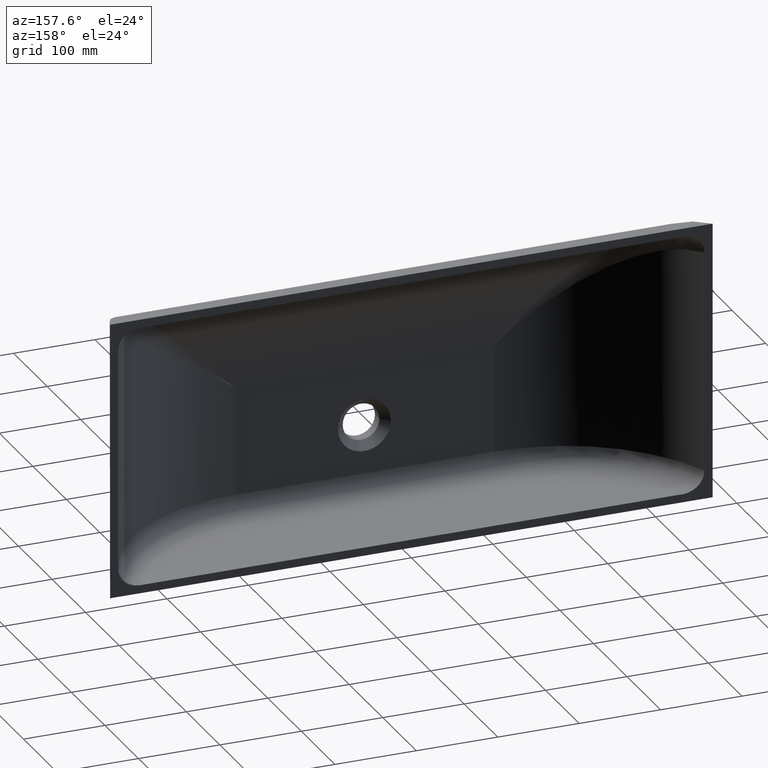
[diagram: clean part render]
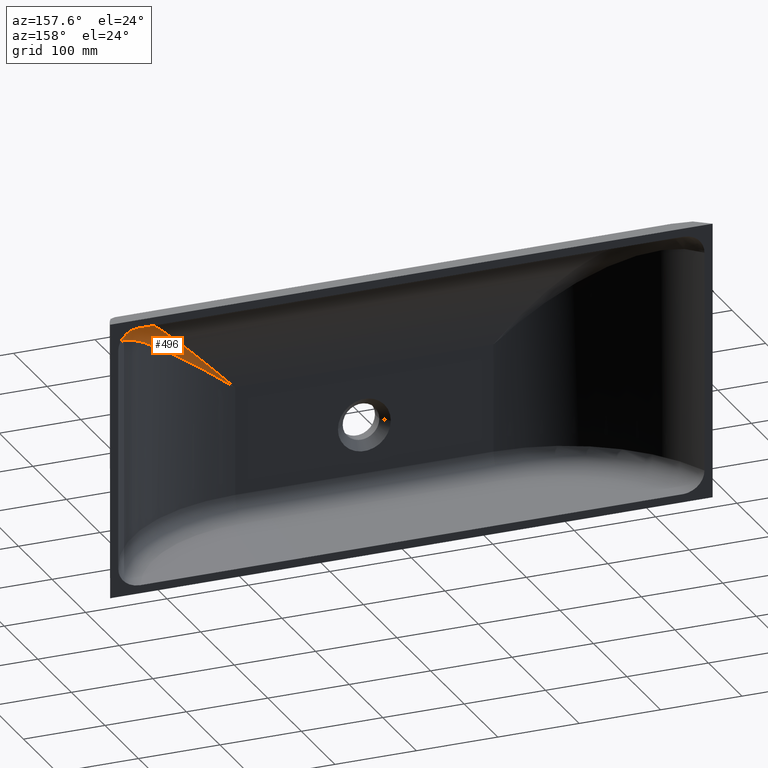
[diagram: same view with one face highlighted and labeled with its STEP entity id]
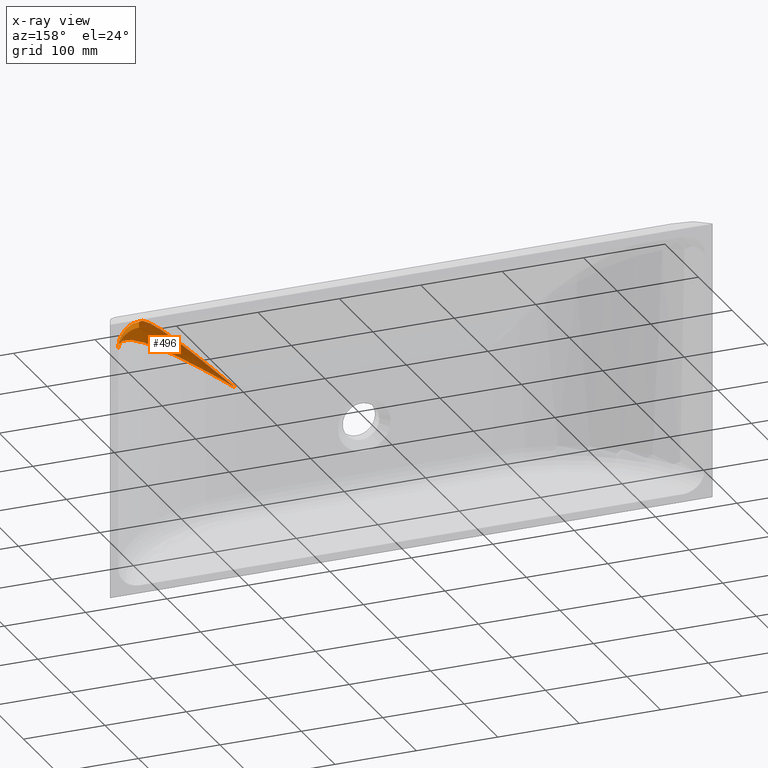
[diagram: x-ray of the same camera — body ghosted, the highlighted face saturated]
A machine part, auxiliary view. The second image highlights one B-rep face of the part: STEP entity #496.
The next image is the same camera in x-ray: the body ghosted, the highlighted face saturated — about 1% of this face is hidden behind the body in this view.
In plain terms, the highlighted face is a freeform B-spline surface patch.
Its self-contained STEP definition (entity closure, byte-faithful):
#9 = CARTESIAN_POINT ( 'NONE',  ( 308.7967371175943754, -53.07756757401281078, 217.7365059949676436 ) ) ;
#16 = CARTESIAN_POINT ( 'NONE',  ( 251.1430156677897969, -111.6499992506998922, 165.4413644839897586 ) ) ;
#23 = CARTESIAN_POINT ( 'NONE',  ( 180.2273190907416449, -138.6035608789357809, 95.17695868629715505 ) ) ;
#36 = CARTESIAN_POINT ( 'NONE',  ( 158.6406308042705575, -139.9999999999999716, 73.44411091323188145 ) ) ;
#39 = CARTESIAN_POINT ( 'NONE',  ( 240.7798648871011267, -117.9259743473460560, 155.3766093648445406 ) ) ;
#41 = CARTESIAN_POINT ( 'NONE',  ( 355.1200221693183607, -0.0000000000000000000, 225.0966133933005437 ) ) ;
#43 = CARTESIAN_POINT ( 'NONE',  ( 204.8077173396186481, -135.2073085103043582, 113.6670253525423959 ) ) ;
#47 = CARTESIAN_POINT ( 'NONE',  ( 278.0618056928828992, -103.8245056966393349, 161.8823924836077310 ) ) ;
#50 = CARTESIAN_POINT ( 'NONE',  ( 342.5883606983367713, 0.0000000000000000000, 233.6839331609355384 ) ) ;
#56 = CARTESIAN_POINT ( 'NONE',  ( 231.3781458217633826, -122.9561565982632629, 146.1728030408489190 ) ) ;
#60 = CARTESIAN_POINT ( 'NONE',  ( 289.0628230060860346, -96.02755590423856802, 185.2105442779894418 ) ) ;
#61 = CARTESIAN_POINT ( 'NONE',  ( 159.7334072754354111, -139.9976181025721473, 74.26763240980189096 ) ) ;
#68 = CARTESIAN_POINT ( 'NONE',  ( 287.2157831797215977, -80.83466452239926525, 199.2254771464129988 ) ) ;
#70 = CARTESIAN_POINT ( 'NONE',  ( 241.5257011740517612, -123.4329464672078700, 135.4394637946088835 ) ) ;
#77 = CARTESIAN_POINT ( 'NONE',  ( 331.2287005802443787, -53.22413063202709083, 197.2019757402828191 ) ) ;
#78 = CARTESIAN_POINT ( 'NONE',  ( 298.1777809516835305, -88.51238910748364219, 175.8821539123541413 ) ) ;
#85 = CARTESIAN_POINT ( 'NONE',  ( 338.1878548773991042, -43.28767718999078795, 222.7674369340379030 ) ) ;
#86 = CARTESIAN_POINT ( 'NONE',  ( 343.4211156679909323, -34.73871701973548909, 203.9536900448720189 ) ) ;
#93 = CARTESIAN_POINT ( 'NONE',  ( 328.3746591355982218, -16.37723026090737477, 231.7834286109413711 ) ) ;
#120 = CARTESIAN_POINT ( 'NONE',  ( 321.0204163143114329, -31.91134229252432775, 226.9655276459887716 ) ) ;
#127 = CARTESIAN_POINT ( 'NONE',  ( 266.8411980384452704, -100.0919106461884525, 180.4287294192358786 ) ) ;
#133 = CARTESIAN_POINT ( 'NONE',  ( 214.0617076926045854, -130.2925009944461863, 129.0405350979360719 ) ) ;
#147 = CARTESIAN_POINT ( 'NONE',  ( 334.5575919093448078, 0.0000000000000000000, 234.8659477326087028 ) ) ;
#149 = CARTESIAN_POINT ( 'NONE',  ( 239.7370909654418654, -118.5125273440687010, 154.3587864527939644 ) ) ;
#151 = CARTESIAN_POINT ( 'NONE',  ( 358.1663957947852168, 0.0000000000000000000, 219.8558883980429357 ) ) ;
#153 = CARTESIAN_POINT ( 'NONE',  ( 195.6341536966990589, -137.0065081727234997, 105.6936671125373550 ) ) ;
#156 = CARTESIAN_POINT ( 'NONE',  ( 269.0122301933216136, -109.5533992199438558, 155.4292534701171178 ) ) ;
#159 = CARTESIAN_POINT ( 'NONE',  ( 347.0904349358409036, -0.0000000000000000000, 231.8707645307098915 ) ) ;
#163 = CARTESIAN_POINT ( 'NONE',  ( 227.1825651013914467, -124.9396022781291720, 142.0389876006277348 ) ) ;
#168 = CARTESIAN_POINT ( 'NONE',  ( 285.8071651974611882, -98.47645434320767777, 182.5466159490951270 ) ) ;
#169 = CARTESIAN_POINT ( 'NONE',  ( 158.7944887963418239, -140.0000000000000568, 73.56005910804002212 ) ) ;
#180 = CARTESIAN_POINT ( 'NONE',  ( 282.5410885787941311, -85.65530821905356618, 194.9812522562049537 ) ) ;
#181 = CARTESIAN_POINT ( 'NONE',  ( 222.3885225192835549, -130.3841257974048062, 121.2806794971972550 ) ) ;
#187 = CARTESIAN_POINT ( 'NONE',  ( 327.6135709363767887, -57.94955795513530461, 195.0333597072115310 ) ) ;
#188 = CARTESIAN_POINT ( 'NONE',  ( 291.7628099427989241, -93.79924394010477329, 171.4762014280534572 ) ) ;
#196 = VERTEX_POINT ( 'NONE', #147 ) ;
#198 = CARTESIAN_POINT ( 'NONE',  ( 337.2786589004024904, -44.66291324077362646, 222.1504916474794982 ) ) ;
#199 = CARTESIAN_POINT ( 'NONE',  ( 340.2514791650472148, -39.91678974756060683, 202.2832025098383326 ) ) ;
#209 = CARTESIAN_POINT ( 'NONE',  ( 325.7978359730495868, -22.22298192613396139, 230.2047708743722580 ) ) ;
#237 = CARTESIAN_POINT ( 'NONE',  ( 323.6636555431002762, -26.58993314001563135, 228.7683147028231474 ) ) ;
#244 = CARTESIAN_POINT ( 'NONE',  ( 278.1801863681002374, -89.97729506693177370, 190.9909394834650129 ) ) ;
#250 = CARTESIAN_POINT ( 'NONE',  ( 230.6945308128251781, -123.2870506950075082, 145.5000400101610012 ) ) ;
#265 = CARTESIAN_POINT ( 'NONE',  ( 237.6497406824780114, -119.6592936455862457, 152.3184839523360665 ) ) ;
#267 = CARTESIAN_POINT ( 'NONE',  ( 358.7482234836583643, -0.0000000000000000000, 218.3295569175664923 ) ) ;
#269 = CARTESIAN_POINT ( 'NONE',  ( 177.2480677008324221, -139.3941047225355305, 89.68118623862910965 ) ) ;
#272 = CARTESIAN_POINT ( 'NONE',  ( 264.4273520248161731, -112.2193356483829945, 152.1308945341544927 ) ) ;
#274 = CARTESIAN_POINT ( 'NONE',  ( 349.8499585675151593, 0.0000000000000000000, 230.1235065629221879 ) ) ;
#277 = CARTESIAN_POINT ( 'NONE',  ( 218.7624902291460671, -128.5223030086642950, 133.7096851499319996 ) ) ;
#280 = CARTESIAN_POINT ( 'NONE',  ( 283.6242878373293479, -100.0540280937521658, 180.7516587161174186 ) ) ;
#288 = CARTESIAN_POINT ( 'NONE',  ( 281.5996672685793669, -86.60703612404390128, 194.1231042429730564 ) ) ;
#289 = CARTESIAN_POINT ( 'NONE',  ( 183.4586164444918950, -138.6190489757593980, 92.13689855839810150 ) ) ;
#297 = CARTESIAN_POINT ( 'NONE',  ( 320.1260839382223935, -66.96263731791823659, 190.3897004997023430 ) ) ;
#298 = CARTESIAN_POINT ( 'NONE',  ( 278.6027516919696723, -103.4613422832394605, 162.2655885140227667 ) ) ;
#307 = CARTESIAN_POINT ( 'NONE',  ( 334.5392868983498147, -48.70529616757599456, 220.2695645428867408 ) ) ;
#308 = CARTESIAN_POINT ( 'NONE',  ( 331.0616995359762882, -53.44163234390263995, 197.1016181715538380 ) ) ;
#315 = CARTESIAN_POINT ( 'NONE',  ( 322.3296493430677288, -29.31887005063186891, 227.8701941903838133 ) ) ;
#324 = CARTESIAN_POINT ( 'NONE',  ( 360.7591947603144718, 2.076239578135470776, 210.9360055222059316 ) ) ;
#336 = VERTEX_POINT ( 'NONE', #889 ) ;
#342 = CARTESIAN_POINT ( 'NONE',  ( 330.3662929206111585, -11.51426568801306338, 232.8993693332964483 ) ) ;
#348 = CARTESIAN_POINT ( 'NONE',  ( 289.0725132488908002, -78.78438447431722125, 200.8876448600162234 ) ) ;
#355 = CARTESIAN_POINT ( 'NONE',  ( 238.9401483054426194, -118.9545108449661086, 153.5802434963385679 ) ) ;
#356 = EDGE_CURVE ( 'NONE', #196, #336, #1022, .T. ) ;
#364 = CARTESIAN_POINT ( 'NONE',  ( 162.9879462412091584, -139.9557972168854292, 77.82316964120137470 ) ) ;
#370 = CARTESIAN_POINT ( 'NONE',  ( 236.6052011604653558, -120.2195144615957787, 151.2960434132727983 ) ) ;
#372 = CARTESIAN_POINT ( 'NONE',  ( 359.8311072258802028, -0.0000000000000000000, 214.0061384558240434 ) ) ;
#376 = CARTESIAN_POINT ( 'NONE',  ( 167.9676395272368836, -140.0000000001596163, 81.58300763936152578 ) ) ;
#380 = CARTESIAN_POINT ( 'NONE',  ( 257.4619369923250929, -115.9369657585949653, 147.0848737091878604 ) ) ;
#383 = CARTESIAN_POINT ( 'NONE',  ( 351.7726113454745018, -0.0000000000000000000, 228.6335284941201564 ) ) ;
#386 = CARTESIAN_POINT ( 'NONE',  ( 214.5379982710007880, -130.1214804214004630, 129.5141744413383265 ) ) ;
#389 = CARTESIAN_POINT ( 'NONE',  ( 277.0837201001467065, -104.5977261015443105, 175.3498950235600660 ) ) ;
#392 = CARTESIAN_POINT ( 'NONE',  ( 336.1945053448616818, 0.0000000000000000000, 234.8659477326097829 ) ) ;
#398 = CARTESIAN_POINT ( 'NONE',  ( 279.7039304088228278, -88.48596230295900966, 192.3885253548227183 ) ) ;
#399 = CARTESIAN_POINT ( 'NONE',  ( 168.6136314554118769, -139.7828142568012026, 80.95917560854276473 ) ) ;
#406 = CARTESIAN_POINT ( 'NONE',  ( 316.2536266910429958, -71.25004304964630819, 187.9144291616839268 ) ) ;
#408 = CARTESIAN_POINT ( 'NONE',  ( 258.0559243902944786, -115.6280848708810964, 147.5160465934159220 ) ) ;
#417 = CARTESIAN_POINT ( 'NONE',  ( 332.6801037676231658, -51.31711339456620635, 218.9642469658947732 ) ) ;
#418 = CARTESIAN_POINT ( 'NONE',  ( 316.3780861575738754, -71.11240681251406670, 187.9940053030376816 ) ) ;
#425 = CARTESIAN_POINT ( 'NONE',  ( 321.6236267730570262, -30.72745429858090560, 227.3851525762607082 ) ) ;
#426 = CARTESIAN_POINT ( 'NONE',  ( 357.8106410740278420, -5.893239973392915942, 210.2122176135002292 ) ) ;
#432 = CARTESIAN_POINT ( 'NONE',  ( 358.5530245173972617, -4.054810595021900888, 210.4426912995298835 ) ) ;
#458 = CARTESIAN_POINT ( 'NONE',  ( 305.6982300496030689, -57.67447729129388989, 215.2091877269241422 ) ) ;
#467 = CARTESIAN_POINT ( 'NONE',  ( 245.0801935991250673, -115.4219987507751455, 159.5646922148054614 ) ) ;
#474 = CARTESIAN_POINT ( 'NONE',  ( 175.9403282028814886, -139.1251728094351279, 90.86438219788769288 ) ) ;
#486 = CARTESIAN_POINT ( 'NONE',  ( 158.6406308042705575, -139.9999999999999716, 73.44411091323188145 ) ) ;
#489 = CARTESIAN_POINT ( 'NONE',  ( 255.1254310383063739, -117.1292206688510191, 145.3864200112721790 ) ) ;
#492 = CARTESIAN_POINT ( 'NONE',  ( 354.6065031600872430, 0.0000000000000000000, 225.7396344057791850 ) ) ;
#494 = CARTESIAN_POINT ( 'NONE',  ( 201.8192238886885548, -134.3702411549228088, 116.8451427058999599 ) ) ;
#496 = ADVANCED_FACE ( 'NONE', ( #595 ), #918, .F. ) ;
#500 = CARTESIAN_POINT ( 'NONE',  ( 272.6719907066807309, -107.4245065343966274, 171.6757820354987416 ) ) ;
#502 = CARTESIAN_POINT ( 'NONE',  ( 341.0122698701584341, -0.0000000000000000000, 234.1160088128760606 ) ) ;
#506 = CARTESIAN_POINT ( 'NONE',  ( 246.8741987455418325, -121.0462874058384983, 139.3600113639559481 ) ) ;
#509 = CARTESIAN_POINT ( 'NONE',  ( 278.7487308594913316, -89.41398344474845317, 191.5112765131568722 ) ) ;
#510 = CARTESIAN_POINT ( 'NONE',  ( 160.8266879388604309, -139.9904653368437835, 75.09153009201010320 ) ) ;
#518 = CARTESIAN_POINT ( 'NONE',  ( 308.2660539082808100, -79.42260264465424768, 182.6901637172714743 ) ) ;
#519 = CARTESIAN_POINT ( 'NONE',  ( 248.6428092387828883, -120.2528767238725749, 140.6560576509780560 ) ) ;
#527 = CARTESIAN_POINT ( 'NONE',  ( 327.0565645649966768, -58.85988126860785030, 214.9421432504551319 ) ) ;
#528 = CARTESIAN_POINT ( 'NONE',  ( 299.2309678409507114, -87.60667429259544292, 176.5997289983638154 ) ) ;
#536 = CARTESIAN_POINT ( 'NONE',  ( 320.1869241202754779, -33.52363353488158282, 226.3794658246523852 ) ) ;
#537 = CARTESIAN_POINT ( 'NONE',  ( 347.2570270395091256, -28.16244497408395375, 205.9019742135314743 ) ) ;
#543 = CARTESIAN_POINT ( 'NONE',  ( 356.1000170720286064, -9.998842827077243811, 209.6431140843255605 ) ) ;
#571 = CARTESIAN_POINT ( 'NONE',  ( 317.6109988768794210, -38.46200868850509380, 224.5564382828233079 ) ) ;
#578 = CARTESIAN_POINT ( 'NONE',  ( 262.9755640702001074, -103.1728184857293797, 176.7702082766304557 ) ) ;
#585 = CARTESIAN_POINT ( 'NONE',  ( 201.4840151142412878, -134.4564626178157312, 116.5095400917784048 ) ) ;
#595 = FACE_OUTER_BOUND ( 'NONE', #727, .T. ) ;
#599 = CARTESIAN_POINT ( 'NONE',  ( 251.5987226398437429, -118.8486113142001699, 142.8149568021602818 ) ) ;
#601 = CARTESIAN_POINT ( 'NONE',  ( 357.3459723623481068, -0.0000000000000000000, 221.7108776634499634 ) ) ;
#604 = CARTESIAN_POINT ( 'NONE',  ( 193.2798482800469628, -136.4740065646284677, 108.2896199000334150 ) ) ;
#607 = CARTESIAN_POINT ( 'NONE',  ( 263.7917346708479727, -112.6732359893556179, 164.2309753669660495 ) ) ;
#609 = CARTESIAN_POINT ( 'NONE',  ( 345.6346243771214972, -0.0000000000000000000, 232.5777224361956144 ) ) ;
#612 = CARTESIAN_POINT ( 'NONE',  ( 240.9586689062269613, -123.6685450057814109, 135.0222513170012917 ) ) ;
#619 = CARTESIAN_POINT ( 'NONE',  ( 275.8736836641722903, -92.15237176301555166, 188.8616038974635387 ) ) ;
#620 = CARTESIAN_POINT ( 'NONE',  ( 158.9520776272734395, -139.9998310673102537, 73.67881888533410972 ) ) ;
#628 = CARTESIAN_POINT ( 'NONE',  ( 304.1508848959906572, -83.30762194891512706, 179.9410436024745934 ) ) ;
#629 = CARTESIAN_POINT ( 'NONE',  ( 227.1926927072222213, -128.8312637198708330, 124.8493658064791845 ) ) ;
#637 = CARTESIAN_POINT ( 'NONE',  ( 323.1880586589393829, -63.59301362873343066, 212.0812491762326601 ) ) ;
#638 = CARTESIAN_POINT ( 'NONE',  ( 294.9862789368073095, -91.18606518210286538, 173.6967308570205262 ) ) ;
#647 = CARTESIAN_POINT ( 'NONE',  ( 319.4589394861431515, -34.90593475514090471, 225.8606957758537135 ) ) ;
#648 = CARTESIAN_POINT ( 'NONE',  ( 341.0540990897001734, -38.63645256929548566, 202.7134261610782744 ) ) ;
#657 = CARTESIAN_POINT ( 'NONE',  ( 350.7309463450939688, -21.54434110443663997, 207.5073045634308073 ) ) ;
#674 = EDGE_CURVE ( 'NONE', #336, #1211, #1233, .T. ) ;
#685 = CARTESIAN_POINT ( 'NONE',  ( 323.0142877255813119, -27.92870677334273921, 228.3339258900350615 ) ) ;
#689 = CARTESIAN_POINT ( 'NONE',  ( 359.9999999999999432, 0.0000000000000000000, 210.7565910530891813 ) ) ;
#693 = CARTESIAN_POINT ( 'NONE',  ( 274.4362927027233923, -93.47089855851726270, 187.5284281466973937 ) ) ;
#698 = CARTESIAN_POINT ( 'NONE',  ( 226.5530991622451609, -125.2241088848695654, 141.4176958332083700 ) ) ;
#712 = CARTESIAN_POINT ( 'NONE',  ( 250.4186011661741418, -119.4106479184050471, 141.9531835411365819 ) ) ;
#715 = CARTESIAN_POINT ( 'NONE',  ( 358.6120215542943015, 0.0000000000000000000, 218.7170551454429415 ) ) ;
#717 = CARTESIAN_POINT ( 'NONE',  ( 176.0662979914195887, -139.2890103841219798, 90.99698429394435095 ) ) ;
#720 = CARTESIAN_POINT ( 'NONE',  ( 259.3168553615246310, -115.1055635659904794, 160.4556742354220944 ) ) ;
#722 = CARTESIAN_POINT ( 'NONE',  ( 349.1755103230971145, -0.0000000000000000000, 230.5829724364477897 ) ) ;
#725 = CARTESIAN_POINT ( 'NONE',  ( 236.2104729647239196, -125.5690878052838855, 131.5222204470201746 ) ) ;
#727 = EDGE_LOOP ( 'NONE', ( #919, #1232, #967 ) ) ;
#728 = CARTESIAN_POINT ( 'NONE',  ( 273.9427015869537740, -93.91892377345952525, 187.0697497060064336 ) ) ;
#740 = CARTESIAN_POINT ( 'NONE',  ( 298.8604692393473101, -87.92677525364349833, 176.3475309384585046 ) ) ;
#741 = CARTESIAN_POINT ( 'NONE',  ( 198.1851144582851134, -136.5612584111331387, 103.2044845121376540 ) ) ;
#750 = CARTESIAN_POINT ( 'NONE',  ( 315.2735376436474439, -72.49452763721018300, 206.0839164933647396 ) ) ;
#751 = CARTESIAN_POINT ( 'NONE',  ( 283.0420258205810455, -100.3958403348312061, 165.3998035904188271 ) ) ;
#759 = CARTESIAN_POINT ( 'NONE',  ( 317.2519621522206421, -38.99769263353899618, 224.2623260625234707 ) ) ;
#760 = CARTESIAN_POINT ( 'NONE',  ( 336.1538772937702220, -46.18712812952163915, 200.0259993573504858 ) ) ;
#771 = CARTESIAN_POINT ( 'NONE',  ( 347.8147204163647643, -27.14575552594025609, 206.1706820433310554 ) ) ;
#779 = CARTESIAN_POINT ( 'NONE',  ( 360.0584446901875708, 0.1288223955382603592, 235.0913296075430594 ) ) ;
#797 = CARTESIAN_POINT ( 'NONE',  ( 326.8091494804826880, -19.81603169969078948, 230.7925781597981256 ) ) ;
#808 = CARTESIAN_POINT ( 'NONE',  ( 285.5248695375870511, -82.64411044685803631, 197.7019365294514728 ) ) ;
#814 = CARTESIAN_POINT ( 'NONE',  ( 236.8815013143572230, -120.0721013869327010, 151.5665847402899260 ) ) ;
#822 = CARTESIAN_POINT ( 'NONE',  ( 160.8186017767555711, -140.0000000000014495, 75.63798539723053693 ) ) ;
#828 = CARTESIAN_POINT ( 'NONE',  ( 248.0563183732563459, -120.5094823656045406, 140.2256942908215649 ) ) ;
#830 = CARTESIAN_POINT ( 'NONE',  ( 359.3315951951572629, -0.0000000000000000000, 216.3798729840156625 ) ) ;
#833 = CARTESIAN_POINT ( 'NONE',  ( 167.3913280720095997, -140.0000000000071907, 82.25870565440784787 ) ) ;
#837 = CARTESIAN_POINT ( 'NONE',  ( 252.5346946912891610, -118.4882656154348552, 154.7046012999013271 ) ) ;
#839 = CARTESIAN_POINT ( 'NONE',  ( 351.1517789581394027, 0.0000000000000000000, 229.1524080650737005 ) ) ;
#843 = CARTESIAN_POINT ( 'NONE',  ( 226.6813593567534326, -129.0020409461525617, 124.4699424427259089 ) ) ;
#846 = CARTESIAN_POINT ( 'NONE',  ( 268.1081540656197149, -99.05005501891841391, 181.6228833552123376 ) ) ;
#848 = CARTESIAN_POINT ( 'NONE',  ( 334.5575919093448078, 0.0000000000000000000, 234.8659477326087028 ) ) ;
#854 = CARTESIAN_POINT ( 'NONE',  ( 297.7950498987561900, -88.83872340292276704, 175.6209516848127521 ) ) ;
#855 = CARTESIAN_POINT ( 'NONE',  ( 171.0965481087830824, -139.6529314292683637, 82.82967491592386011 ) ) ;
#863 = CARTESIAN_POINT ( 'NONE',  ( 311.2307697497651588, -76.67511667671722364, 202.9527590848228442 ) ) ;
#864 = CARTESIAN_POINT ( 'NONE',  ( 265.0156623508367488, -111.8854746674131349, 152.5549808632362954 ) ) ;
#873 = CARTESIAN_POINT ( 'NONE',  ( 315.7478057684888313, -41.65628769202258042, 223.1392179514797647 ) ) ;
#874 = CARTESIAN_POINT ( 'NONE',  ( 320.1821060338422171, -66.89409556995792627, 190.4242269066726578 ) ) ;
#883 = CARTESIAN_POINT ( 'NONE',  ( 343.8897262908893708, -33.94505394814868282, 204.1940358722118276 ) ) ;
#884 = CARTESIAN_POINT ( 'NONE',  ( 359.9999999999999432, 0.0000000000000000000, 210.7565910530891813 ) ) ;
#889 = CARTESIAN_POINT ( 'NONE',  ( 158.6406308046548475, -139.9999999999999147, 73.44411091323188145 ) ) ;
#890 = CARTESIAN_POINT ( 'NONE',  ( 357.5276721263312538, -6.720289920134262296, 234.1465079969165402 ) ) ;
#896 = EDGE_CURVE ( 'NONE', #1211, #196, #1142, .T. ) ;
#910 = CARTESIAN_POINT ( 'NONE',  ( 334.5575919093448078, 0.0000000000000000000, 234.8659477326087028 ) ) ;
#915 = CARTESIAN_POINT ( 'NONE',  ( 299.2732239618196104, -66.48920447952660595, 209.8124342882912856 ) ) ;
#918 =( BOUNDED_SURFACE ( )  B_SPLINE_SURFACE ( 3, 2, ( 
 ( #36, #486, #942 ),
 ( #1379, #376, #833 ),
 ( #1275, #269, #717 ),
 ( #1170, #153, #604 ),
 ( #1063, #43, #494 ),
 ( #951, #1387, #386 ),
 ( #843, #1284, #277 ),
 ( #725, #1178, #163 ),
 ( #612, #1075, #56 ),
 ( #506, #1373, #370 ),
 ( #828, #1270, #265 ),
 ( #712, #1166, #149 ),
 ( #599, #1059, #39 ),
 ( #489, #945, #1384 ),
 ( #380, #837, #1279 ),
 ( #272, #720, #1173 ),
 ( #156, #607, #1066 ),
 ( #47, #500, #954 ),
 ( #1391, #389, #846 ),
 ( #1287, #280, #728 ),
 ( #1182, #168, #619 ),
 ( #1080, #60, #509 ),
 ( #964, #1399, #398 ),
 ( #854, #1294, #288 ),
 ( #740, #1190, #180 ),
 ( #628, #1089, #68 ),
 ( #518, #973, #1407 ),
 ( #406, #863, #1304 ),
 ( #297, #750, #1199 ),
 ( #187, #637, #1098 ),
 ( #77, #527, #982 ),
 ( #1415, #417, #873 ),
 ( #1314, #307, #759 ),
 ( #1208, #198, #647 ),
 ( #1108, #85, #536 ),
 ( #993, #1423, #425 ),
 ( #883, #1322, #315 ),
 ( #771, #1217, #209 ),
 ( #657, #1116, #93 ),
 ( #543, #1000, #1431 ),
 ( #432, #890, #1329 ),
 ( #324, #779, #1224 ) ),
 .UNSPECIFIED., .F., .F., .F. ) 
 B_SPLINE_SURFACE_WITH_KNOTS ( ( 4, 2, 2, 2, 2, 2, 2, 2, 2, 2, 2, 2, 2, 2, 2, 2, 2, 2, 2, 2, 4 ),
 ( 3, 3 ),
 ( -8.713339240256410374E-05, 0.03392646650334189828, 0.06794006639908635459, 0.08494686634695858274, 0.1019536662948308248, 0.1062053662817988853, 0.1104570662687669458, 0.1189604662427030529, 0.1359672661905752811, 0.1529740661384474953, 0.1614774661123836164, 0.1657291660993516769, 0.1699808660863197374, 0.1869876660341919794, 0.2039944659820642214, 0.2210012659299364635, 0.2295046659038725845, 0.2337563658908406450, 0.2380080658778086777, 0.2550148658256808920, 0.2720216657735531340 ),
 ( 0.0000000000000000000, 1.000000000000000000 ),
 .UNSPECIFIED. ) 
 GEOMETRIC_REPRESENTATION_ITEM ( )  RATIONAL_B_SPLINE_SURFACE ( (
 ( 1.000000000000000000, 1.000000000000000000, 1.000000000000000000),
 ( 1.000000000000000000, 0.9999981369205060977, 1.000000000000000000),
 ( 1.000000000000000000, 0.9981120371569368599, 1.000000000000000000),
 ( 1.000000000000000000, 0.9906969518077292092, 1.000000000000000000),
 ( 1.000000000000000000, 0.9851691513459762684, 1.000000000000000000),
 ( 1.000000000000000000, 0.9741647250360242483, 1.000000000000000000),
 ( 1.000000000000000000, 0.9700436460348432766, 1.000000000000000000),
 ( 1.000000000000000000, 0.9608894642560760202, 1.000000000000000000),
 ( 1.000000000000000000, 0.9558563406939785123, 1.000000000000000000),
 ( 1.000000000000000000, 0.9489877036597271776, 1.000000000000000000),
 ( 1.000000000000000000, 0.9475851024767252273, 1.000000000000000000),
 ( 1.000000000000000000, 0.9447219259963979265, 1.000000000000000000),
 ( 1.000000000000000000, 0.9432613405657145345, 1.000000000000000000),
 ( 1.000000000000000000, 0.9388062078748130590, 1.000000000000000000),
 ( 1.000000000000000000, 0.9357340081441455348, 1.000000000000000000),
 ( 1.000000000000000000, 0.9262185156613897963, 1.000000000000000000),
 ( 1.000000000000000000, 0.9194761029222041637, 1.000000000000000000),
 ( 1.000000000000000000, 0.9052371073986130723, 1.000000000000000000),
 ( 1.000000000000000000, 0.8977402756132679684, 1.000000000000000000),
 ( 1.000000000000000000, 0.8859692428504611916, 1.000000000000000000),
 ( 1.000000000000000000, 0.8819580359880897502, 1.000000000000000000),
 ( 1.000000000000000000, 0.8758162214678011370, 1.000000000000000000),
 ( 1.000000000000000000, 0.8737471417572513221, 1.000000000000000000),
 ( 1.000000000000000000, 0.8695849909199993011, 1.000000000000000000),
 ( 1.000000000000000000, 0.8674900607628598381, 1.000000000000000000),
 ( 1.000000000000000000, 0.8569515131439879863, 1.000000000000000000),
 ( 1.000000000000000000, 0.8483148289418076526, 1.000000000000000000),
 ( 1.000000000000000000, 0.8307874331769471432, 1.000000000000000000),
 ( 1.000000000000000000, 0.8218960393518263130, 1.000000000000000000),
 ( 1.000000000000000000, 0.8040615358750745623, 1.000000000000000000),
 ( 1.000000000000000000, 0.7951173850308079771, 1.000000000000000000),
 ( 1.000000000000000000, 0.7818671791656758296, 1.000000000000000000),
 ( 1.000000000000000000, 0.7774787610319172648, 1.000000000000000000),
 ( 1.000000000000000000, 0.7709716907464523317, 1.000000000000000000),
 ( 1.000000000000000000, 0.7688137074430464457, 1.000000000000000000),
 ( 1.000000000000000000, 0.7645362243340414476, 1.000000000000000000),
 ( 1.000000000000000000, 0.7624247767078305982, 1.000000000000000000),
 ( 1.000000000000000000, 0.7520188214643702684, 1.000000000000000000),
 ( 1.000000000000000000, 0.7441756527391116816, 1.000000000000000000),
 ( 1.000000000000000000, 0.7298706279466933289, 1.000000000000000000),
 ( 1.000000000000000000, 0.7234096579448064945, 1.000000000000000000),
 ( 1.000000000000000000, 0.7178802569954649826, 1.000000000000000000) ) ) 
 REPRESENTATION_ITEM ( '' )  SURFACE ( )  );
#919 = ORIENTED_EDGE ( 'NONE', *, *, #896, .F. ) ;
#924 = CARTESIAN_POINT ( 'NONE',  ( 243.0446319057856215, -116.6334079950364355, 157.5851178738527949 ) ) ;
#931 = CARTESIAN_POINT ( 'NONE',  ( 169.4777523444251415, -139.6488315439184191, 84.35892050631132122 ) ) ;
#938 = CARTESIAN_POINT ( 'NONE',  ( 359.9999999999999432, 0.0000000000000000000, 210.7565910530891813 ) ) ;
#942 = CARTESIAN_POINT ( 'NONE',  ( 158.6406308042705575, -139.9999999999999716, 73.44411091323188145 ) ) ;
#945 = CARTESIAN_POINT ( 'NONE',  ( 250.2726072953599896, -119.5674001250854417, 152.7816898167959607 ) ) ;
#947 = CARTESIAN_POINT ( 'NONE',  ( 353.5277075101101900, -0.0000000000000000000, 226.9578747974769328 ) ) ;
#951 = CARTESIAN_POINT ( 'NONE',  ( 221.9004441730688768, -130.5343768945903378, 120.9176752435367774 ) ) ;
#954 = CARTESIAN_POINT ( 'NONE',  ( 264.1630618796378940, -102.2465077297693625, 177.8967707442951109 ) ) ;
#956 = CARTESIAN_POINT ( 'NONE',  ( 340.2143009028646361, 0.0000000000000000000, 234.2956580976439795 ) ) ;
#964 = CARTESIAN_POINT ( 'NONE',  ( 295.6496186311229621, -90.63911534542394577, 174.1523133910034176 ) ) ;
#966 = CARTESIAN_POINT ( 'NONE',  ( 163.0112097738811769, -139.9618763560601451, 76.73776207548647221 ) ) ;
#967 = ORIENTED_EDGE ( 'NONE', *, *, #356, .F. ) ;
#973 = CARTESIAN_POINT ( 'NONE',  ( 302.9829109474823667, -84.54811585441014188, 196.4567634889746444 ) ) ;
#974 = CARTESIAN_POINT ( 'NONE',  ( 251.0138301351722134, -119.1415944911333611, 142.3892556520597452 ) ) ;
#982 = CARTESIAN_POINT ( 'NONE',  ( 311.1421676076332119, -49.43891226635517455, 219.6120138468388348 ) ) ;
#984 = CARTESIAN_POINT ( 'NONE',  ( 304.4581570725684401, -83.02229259888048318, 180.1470565071396379 ) ) ;
#993 = CARTESIAN_POINT ( 'NONE',  ( 343.0907109161653352, -35.29476303131735904, 203.7833594287925507 ) ) ;
#994 = CARTESIAN_POINT ( 'NONE',  ( 350.1137609841835001, -22.75189831581827349, 207.2303008674101079 ) ) ;
#1000 = CARTESIAN_POINT ( 'NONE',  ( 354.7072546344767261, -13.29727134308465430, 232.7981064487428569 ) ) ;
#1022 = B_SPLINE_CURVE_WITH_KNOTS ( 'NONE', 3,
 ( #910, #1346, #342, #797, #1245, #237, #685, #1140, #120, #571, #1031, #9, #458, #915, #1351, #348, #808, #1251, #244, #693, #1146, #127, #578, #1037, #16, #467, #924, #1360, #355, #814, #1256, #250, #698, #1152, #133, #585, #1046, #23, #474, #931, #1367, #364, #822, #1264 ),
 .UNSPECIFIED., .F., .F.,
 ( 4, 2, 2, 2, 2, 2, 2, 2, 2, 2, 2, 2, 2, 2, 2, 2, 2, 2, 2, 2, 2, 4 ),
 ( 0.0000000000000000000, 0.01854829196630610258, 0.02782243794945915907, 0.03245951094103571855, 0.03709658393261228149, 0.05564487589891869979, 0.07419316786522511808, 0.09274145983153152251, 0.1112897517978379408, 0.1205638977809911500, 0.1298380437641443730, 0.1483863357304507080, 0.1669346276967570430, 0.1762087736799102244, 0.1808458466714867596, 0.1854829196630632948, 0.2040312116293694356, 0.2225795035956756041, 0.2596760875282879133, 0.2782243794945940540, 0.2874985254777471244, 0.2967726714609002503 ),
 .UNSPECIFIED. ) ;
#1031 = CARTESIAN_POINT ( 'NONE',  ( 314.7530788975631708, -43.47121982518363126, 222.4099983894727472 ) ) ;
#1037 = CARTESIAN_POINT ( 'NONE',  ( 255.1264779964571687, -108.9519003877734065, 169.2765499475414117 ) ) ;
#1046 = CARTESIAN_POINT ( 'NONE',  ( 193.0287964990245371, -136.5247165045614111, 108.0377325074818629 ) ) ;
#1059 = CARTESIAN_POINT ( 'NONE',  ( 246.8611364428169566, -121.1223856704771293, 149.8753058608234880 ) ) ;
#1061 = CARTESIAN_POINT ( 'NONE',  ( 356.5429540486287010, -0.0000000000000000000, 223.1135846400030402 ) ) ;
#1063 = CARTESIAN_POINT ( 'NONE',  ( 207.5064336827487068, -134.6055504594995114, 110.1910226371233676 ) ) ;
#1066 = CARTESIAN_POINT ( 'NONE',  ( 256.1667144329244934, -108.2252992162097485, 170.2750991983226641 ) ) ;
#1069 = CARTESIAN_POINT ( 'NONE',  ( 343.3612177800625318, -0.0000000000000000000, 233.4331847124630031 ) ) ;
#1075 = CARTESIAN_POINT ( 'NONE',  ( 236.6431856317185236, -125.4518707357443219, 141.1421217754824227 ) ) ;
#1080 = CARTESIAN_POINT ( 'NONE',  ( 294.5686062693679332, -91.52834761264811902, 173.4095617924257056 ) ) ;
#1081 = CARTESIAN_POINT ( 'NONE',  ( 159.2646388363566530, -139.9991504810973595, 73.91436650768115157 ) ) ;
#1089 = CARTESIAN_POINT ( 'NONE',  ( 298.7786706160104018, -88.25256861986586898, 193.0946507662062572 ) ) ;
#1090 = CARTESIAN_POINT ( 'NONE',  ( 236.7612822250981424, -125.3556399109076409, 131.9287474315778752 ) ) ;
#1098 = CARTESIAN_POINT ( 'NONE',  ( 307.9477821141423988, -54.37046572123598054, 217.0507054544131336 ) ) ;
#1099 = CARTESIAN_POINT ( 'NONE',  ( 296.0559591228519594, -90.30166521931616330, 174.4310155224555388 ) ) ;
#1108 = CARTESIAN_POINT ( 'NONE',  ( 341.4647749230526870, -37.97406923453775107, 202.9318616473718180 ) ) ;
#1109 = CARTESIAN_POINT ( 'NONE',  ( 342.6400523118312549, -36.04558897882957069, 203.5492746982118604 ) ) ;
#1116 = CARTESIAN_POINT ( 'NONE',  ( 348.5773290745399322, -25.87778102491087040, 229.4316681747172595 ) ) ;
#1140 = CARTESIAN_POINT ( 'NONE',  ( 321.6930846871173912, -30.58861602884664421, 227.4328281026753018 ) ) ;
#1142 = B_SPLINE_CURVE_WITH_KNOTS ( 'NONE', 3,
 ( #938, #1375, #372, #830, #1272, #267, #715, #1168, #151, #601, #1061, #41, #492, #947, #1385, #383, #839, #1281, #274, #722, #1175, #159, #609, #1069, #50, #502, #956, #1393, #392, #848 ),
 .UNSPECIFIED., .F., .F.,
 ( 4, 2, 2, 2, 2, 2, 2, 2, 2, 2, 2, 2, 2, 2, 4 ),
 ( 0.0000000000000000000, 0.004847773143508090493, 0.007271659715262153954, 0.008483603001139185251, 0.009695546287016215681, 0.01454331943052447444, 0.01696720600227865153, 0.01939109257403282688, 0.02181497914578700223, 0.02302692243166416103, 0.02423886571754131636, 0.02908663886104992380, 0.03151052543280420670, 0.03393441200455849655, 0.03878218514806706929 ),
 .UNSPECIFIED. ) ;
#1146 = CARTESIAN_POINT ( 'NONE',  ( 272.5488788635722699, -95.16447085295834540, 185.7716442859938297 ) ) ;
#1152 = CARTESIAN_POINT ( 'NONE',  ( 218.2366862725550902, -128.7268677110080262, 133.1879536583396941 ) ) ;
#1166 = CARTESIAN_POINT ( 'NONE',  ( 245.7225850192548364, -121.6294259542869582, 148.9042654863218900 ) ) ;
#1168 = CARTESIAN_POINT ( 'NONE',  ( 358.3212302895880157, -0.0000000000000000000, 219.4797644280571944 ) ) ;
#1170 = CARTESIAN_POINT ( 'NONE',  ( 197.8423058038261786, -136.6213839367583205, 102.9472077249767779 ) ) ;
#1173 = CARTESIAN_POINT ( 'NONE',  ( 252.1154438690510347, -111.0075254795633555, 166.3794743872268498 ) ) ;
#1175 = CARTESIAN_POINT ( 'NONE',  ( 348.8308066239244454, 0.0000000000000000000, 230.8056299325390057 ) ) ;
#1178 = CARTESIAN_POINT ( 'NONE',  ( 232.0899823340518253, -127.1586637820765304, 137.2324103953064025 ) ) ;
#1182 = CARTESIAN_POINT ( 'NONE',  ( 291.3148761341461181, -94.15227840821688687, 171.1661292820792539 ) ) ;
#1183 = CARTESIAN_POINT ( 'NONE',  ( 158.6406308046548475, -139.9999999999999147, 73.44411091323188145 ) ) ;
#1190 = CARTESIAN_POINT ( 'NONE',  ( 293.3859763464080288, -92.64382873260584006, 188.7295610232836509 ) ) ;
#1191 = CARTESIAN_POINT ( 'NONE',  ( 207.9150621329929152, -134.5127117515090731, 110.4968803020896644 ) ) ;
#1199 = CARTESIAN_POINT ( 'NONE',  ( 301.3317206709172069, -63.77670131279106158, 211.5661737904175368 ) ) ;
#1200 = CARTESIAN_POINT ( 'NONE',  ( 289.5957761871267166, -95.48724776503057399, 169.9731323932710154 ) ) ;
#1208 = CARTESIAN_POINT ( 'NONE',  ( 340.6409047807625825, -39.29859385235679525, 202.4926279148756691 ) ) ;
#1209 = CARTESIAN_POINT ( 'NONE',  ( 337.8154445689507384, -43.71400464423653176, 200.9571558195915770 ) ) ;
#1211 = VERTEX_POINT ( 'NONE', #689 ) ;
#1217 = CARTESIAN_POINT ( 'NONE',  ( 345.2883469543596675, -31.86826463491255268, 227.4319839697590453 ) ) ;
#1224 = CARTESIAN_POINT ( 'NONE',  ( 337.2357773853162826, 8.273695106847226199, 235.8329977403753048 ) ) ;
#1232 = ORIENTED_EDGE ( 'NONE', *, *, #674, .F. ) ;
#1233 = B_SPLINE_CURVE_WITH_KNOTS ( 'NONE', 3,
 ( #1183, #169, #620, #1081, #61, #510, #966, #1400, #399, #855, #1295, #289, #741, #1191, #181, #629, #1090, #70, #519, #974, #1408, #408, #864, #1305, #298, #751, #1200, #188, #638, #1099, #78, #528, #984, #1416, #418, #874, #1315, #308, #760, #1209, #199, #648, #1109, #86, #537, #994, #1424, #426, #884 ),
 .UNSPECIFIED., .F., .F.,
 ( 4, 2, 1, 1, 1, 2, 2, 2, 2, 2, 2, 2, 2, 2, 2, 2, 2, 2, 2, 2, 2, 2, 2, 2, 2, 4 ),
 ( -9.273592403470564348E-05, 0.0004852315353433312188, 0.001063198994721368217, 0.002219133913477441995, 0.004531003750989589553, 0.009154743426013840432, 0.01840222277606232484, 0.03689718147615932142, 0.07388709887635332152, 0.09238205757645033545, 0.1108770162765473216, 0.1201244956265958147, 0.1293719749766443217, 0.1478669336767412246, 0.1663618923768381552, 0.1756093717268866761, 0.1802331114019110059, 0.1848568510769353357, 0.2033518097770327104, 0.2218467684771300574, 0.2403417271772274599, 0.2495892065272760640, 0.2542129462023003938, 0.2588366858773246681, 0.2773316445774219319, 0.2958266032775191956 ),
 .UNSPECIFIED. ) ;
#1245 = CARTESIAN_POINT ( 'NONE',  ( 325.5779715734840920, -22.54692885686621651, 230.0222414737444581 ) ) ;
#1251 = CARTESIAN_POINT ( 'NONE',  ( 280.0393024307044243, -88.17436720427248531, 192.6990306047458148 ) ) ;
#1256 = CARTESIAN_POINT ( 'NONE',  ( 235.8511793006385062, -120.6182572031821252, 150.5573975105885722 ) ) ;
#1264 = CARTESIAN_POINT ( 'NONE',  ( 158.6406308046548475, -139.9999999999999147, 73.44411091323188145 ) ) ;
#1270 = CARTESIAN_POINT ( 'NONE',  ( 243.4460286760479448, -122.6197097010024351, 146.9606493609237248 ) ) ;
#1272 = CARTESIAN_POINT ( 'NONE',  ( 359.1237691599417872, 0.0000000000000000000, 217.1640883381752758 ) ) ;
#1275 = CARTESIAN_POINT ( 'NONE',  ( 178.3614960980041246, -139.3187279040908209, 88.30582875671464649 ) ) ;
#1279 = CARTESIAN_POINT ( 'NONE',  ( 245.9606934375252081, -114.8873209689793953, 160.4197215813740343 ) ) ;
#1281 = CARTESIAN_POINT ( 'NONE',  ( 350.1804342888220845, -0.0000000000000000000, 229.8862954756433794 ) ) ;
#1284 = CARTESIAN_POINT ( 'NONE',  ( 222.9886136576348008, -130.2282492231728384, 129.3944676928269359 ) ) ;
#1287 = CARTESIAN_POINT ( 'NONE',  ( 289.1295573730486126, -95.84499313076391047, 169.6489969680700085 ) ) ;
#1294 = CARTESIAN_POINT ( 'NONE',  ( 292.3103877683706742, -93.50251161195252791, 187.8564218808935209 ) ) ;
#1295 = CARTESIAN_POINT ( 'NONE',  ( 178.5277855335870640, -139.1350691455097603, 88.42607464729182709 ) ) ;
#1304 = CARTESIAN_POINT ( 'NONE',  ( 297.9099564541668883, -68.25112639722134134, 208.6426810397125564 ) ) ;
#1305 = CARTESIAN_POINT ( 'NONE',  ( 269.5895785471466297, -109.2062013134034544, 155.8432022720342616 ) ) ;
#1314 = CARTESIAN_POINT ( 'NONE',  ( 338.1432384221747611, -43.21932687382096105, 201.1393156010648227 ) ) ;
#1315 = CARTESIAN_POINT ( 'NONE',  ( 327.5238752302911962, -58.05862933059101749, 194.9779482906326109 ) ) ;
#1322 = CARTESIAN_POINT ( 'NONE',  ( 340.8761655335098339, -39.08013681331185296, 224.5599257895112828 ) ) ;
#1329 = CARTESIAN_POINT ( 'NONE',  ( 335.2863758084948813, 1.875221705696292096, 235.2503558761318914 ) ) ;
#1346 = CARTESIAN_POINT ( 'NONE',  ( 332.5561834727519113, -5.834657015661600887, 234.0324077545790544 ) ) ;
#1351 = CARTESIAN_POINT ( 'NONE',  ( 295.9466795341761554, -70.70689783968219899, 206.9428522745554915 ) ) ;
#1360 = CARTESIAN_POINT ( 'NONE',  ( 239.9693094593171736, -118.3825884873383814, 154.5855293176510088 ) ) ;
#1367 = CARTESIAN_POINT ( 'NONE',  ( 167.3182068370115587, -139.7802136368541710, 82.18432732530946794 ) ) ;
#1373 = CARTESIAN_POINT ( 'NONE',  ( 242.3079314854352901, -123.1030879398524718, 145.9880029498378917 ) ) ;
#1375 = CARTESIAN_POINT ( 'NONE',  ( 359.9999999999999432, -0.0000000000000000000, 212.3957303358398008 ) ) ;
#1379 = CARTESIAN_POINT ( 'NONE',  ( 168.5439143573316017, -140.0000000000081570, 80.90727765644328429 ) ) ;
#1384 = CARTESIAN_POINT ( 'NONE',  ( 243.8961199753836127, -116.1315827932899083, 158.4137123827078995 ) ) ;
#1385 = CARTESIAN_POINT ( 'NONE',  ( 352.9605730739934870, 0.0000000000000000000, 227.5362590373806597 ) ) ;
#1387 = CARTESIAN_POINT ( 'NONE',  ( 218.4318753701116691, -131.5971032497773479, 125.4590557180334827 ) ) ;
#1391 = CARTESIAN_POINT ( 'NONE',  ( 282.5265203425282721, -100.7616564106534582, 165.0372283372448976 ) ) ;
#1393 = CARTESIAN_POINT ( 'NONE',  ( 337.8133963063303895, -0.0000000000000000000, 234.7241583891791379 ) ) ;
#1399 = CARTESIAN_POINT ( 'NONE',  ( 290.1493285824844293, -95.19391415198955997, 186.0973267473381725 ) ) ;
#1400 = CARTESIAN_POINT ( 'NONE',  ( 164.8801944314933792, -139.9129699107478757, 78.14611826568088304 ) ) ;
#1407 = CARTESIAN_POINT ( 'NONE',  ( 290.8520113349347298, -76.78017821615392791, 202.4724071307044824 ) ) ;
#1408 = CARTESIAN_POINT ( 'NONE',  ( 255.7195146597028383, -116.8295037002133654, 145.8186022715851777 ) ) ;
#1415 = CARTESIAN_POINT ( 'NONE',  ( 336.4409641215680722, -45.76679956074070788, 200.1883991617690128 ) ) ;
#1416 = CARTESIAN_POINT ( 'NONE',  ( 308.5161315968580880, -79.17654899134750224, 182.8554683853824656 ) ) ;
#1423 = CARTESIAN_POINT ( 'NONE',  ( 339.9884075299415258, -40.49367086140387073, 223.9733986571033881 ) ) ;
#1424 = CARTESIAN_POINT ( 'NONE',  ( 355.3905211733892315, -11.61724356834092831, 209.3852770195238691 ) ) ;
#1431 = CARTESIAN_POINT ( 'NONE',  ( 333.1188545955955078, -4.328110038470270204, 234.3059898975813269 ) ) ;